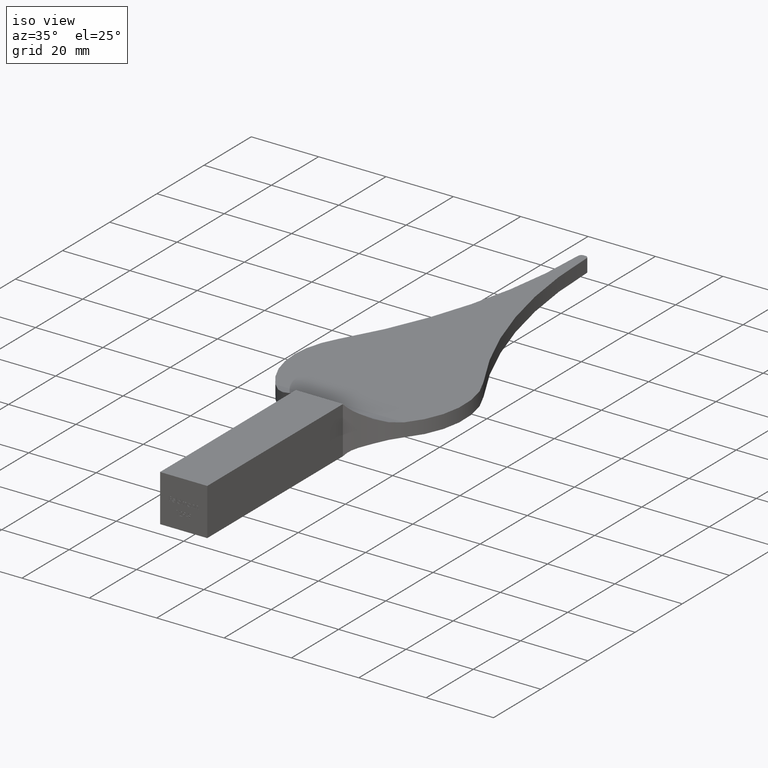
[diagram: clean part render]
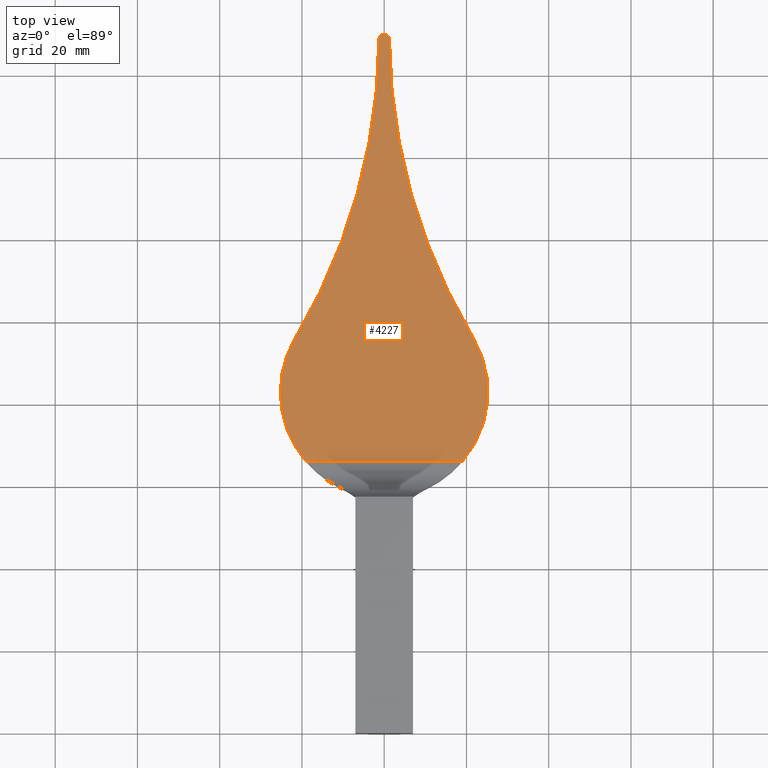
[diagram: tour spotlight — one face highlighted and labeled with its STEP entity id]
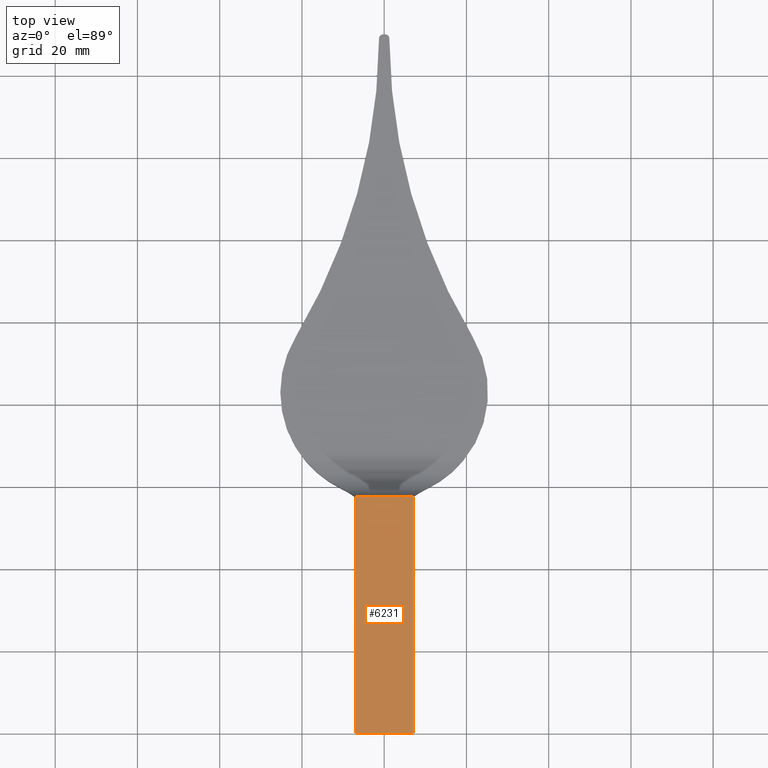
[diagram: tour spotlight — one face highlighted and labeled with its STEP entity id]
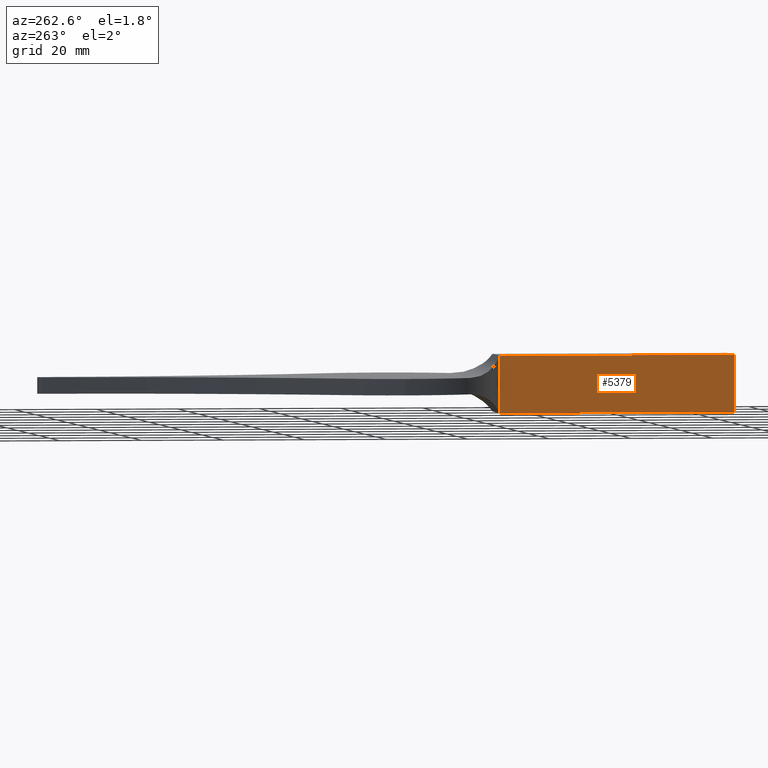
[diagram: tour spotlight — one face highlighted and labeled with its STEP entity id]
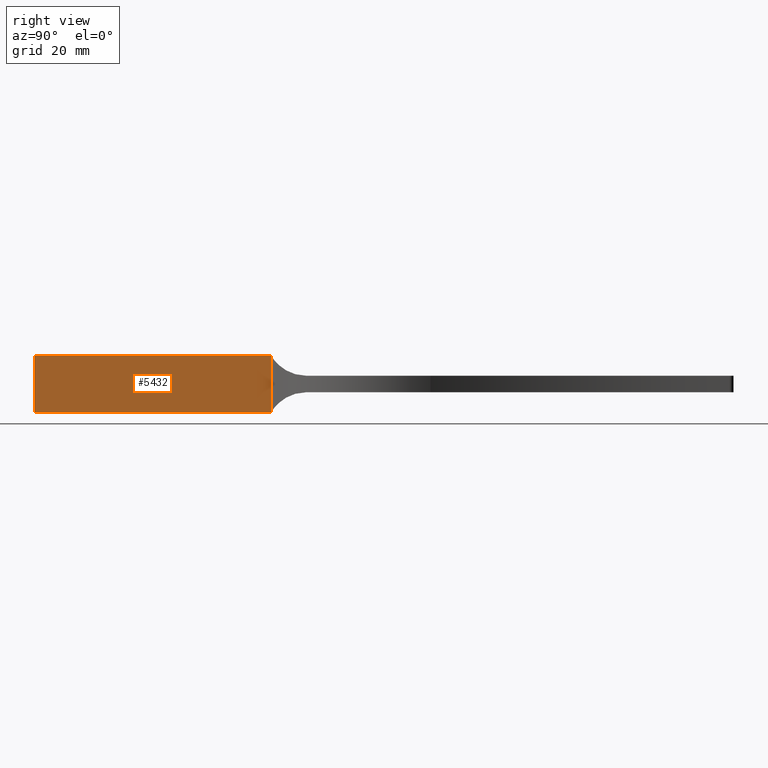
[diagram: tour spotlight — one face highlighted and labeled with its STEP entity id]
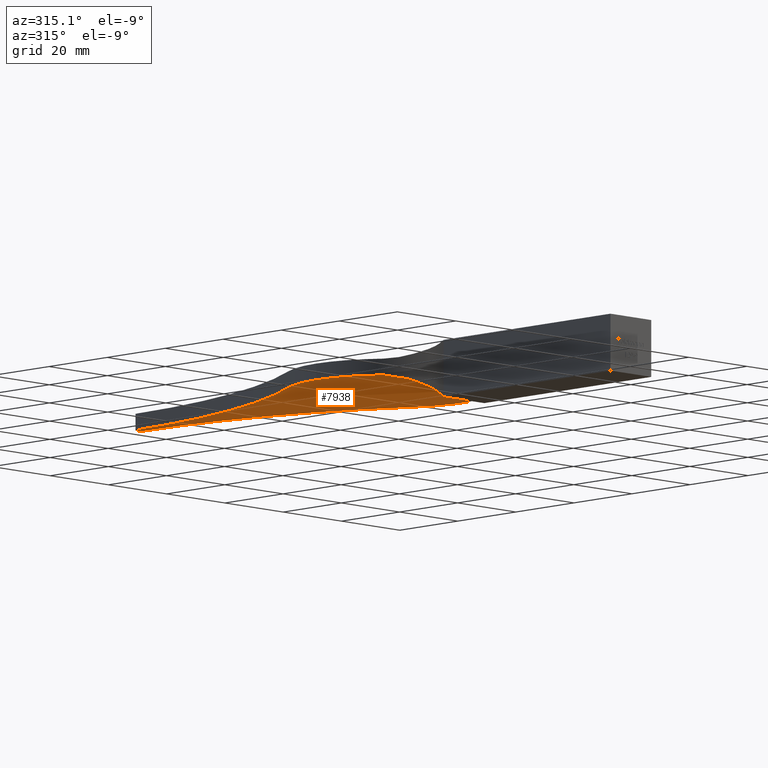
[diagram: tour spotlight — one face highlighted and labeled with its STEP entity id]
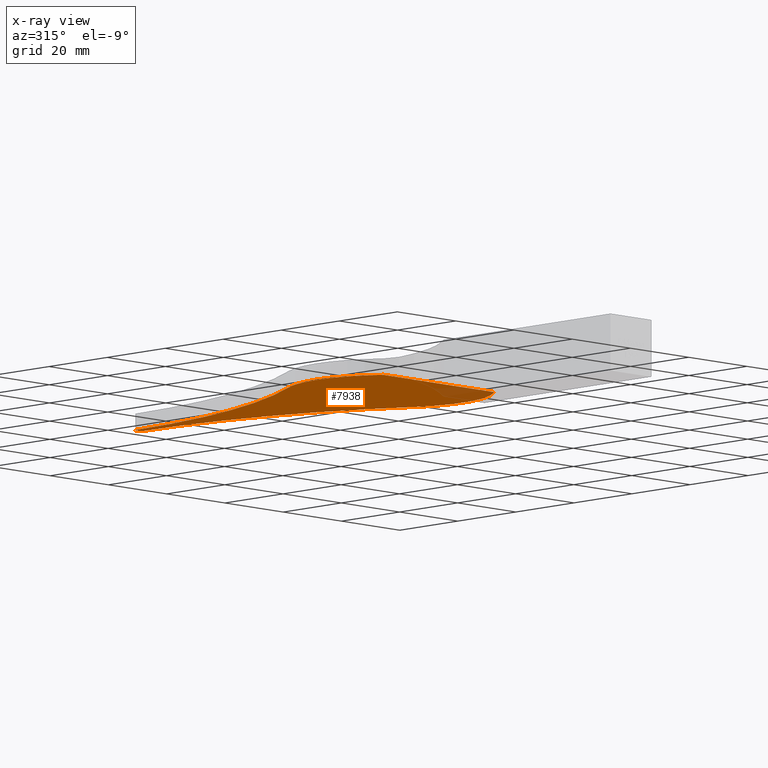
[diagram: x-ray of the same camera — body ghosted, this tour face saturated]
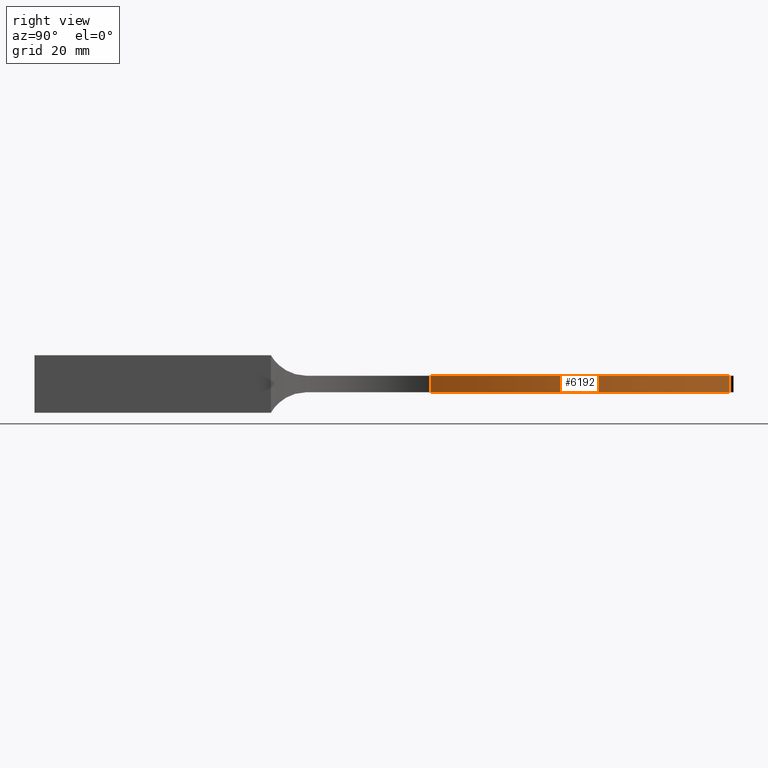
[diagram: tour spotlight — one face highlighted and labeled with its STEP entity id]
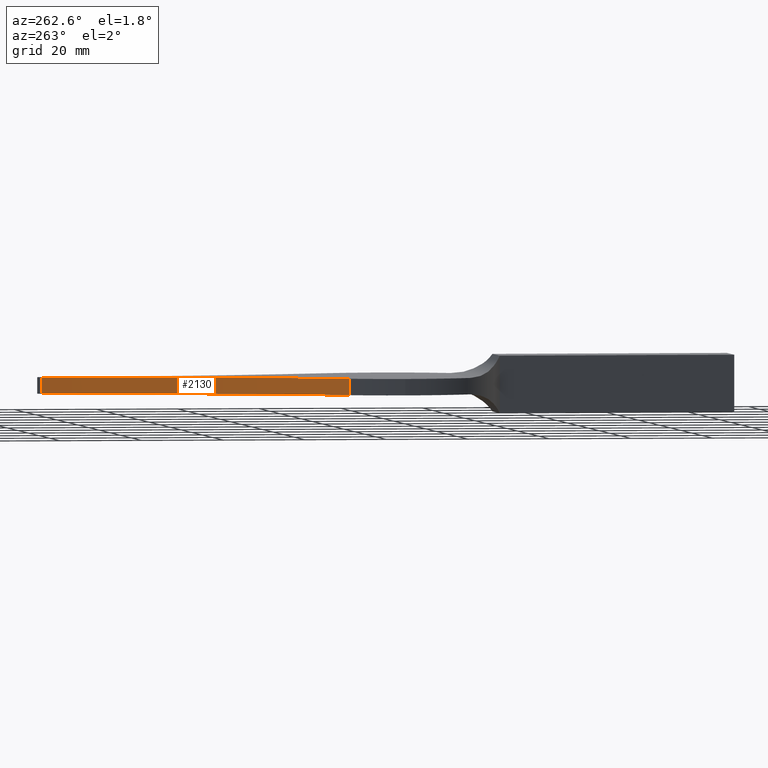
[diagram: tour spotlight — one face highlighted and labeled with its STEP entity id]
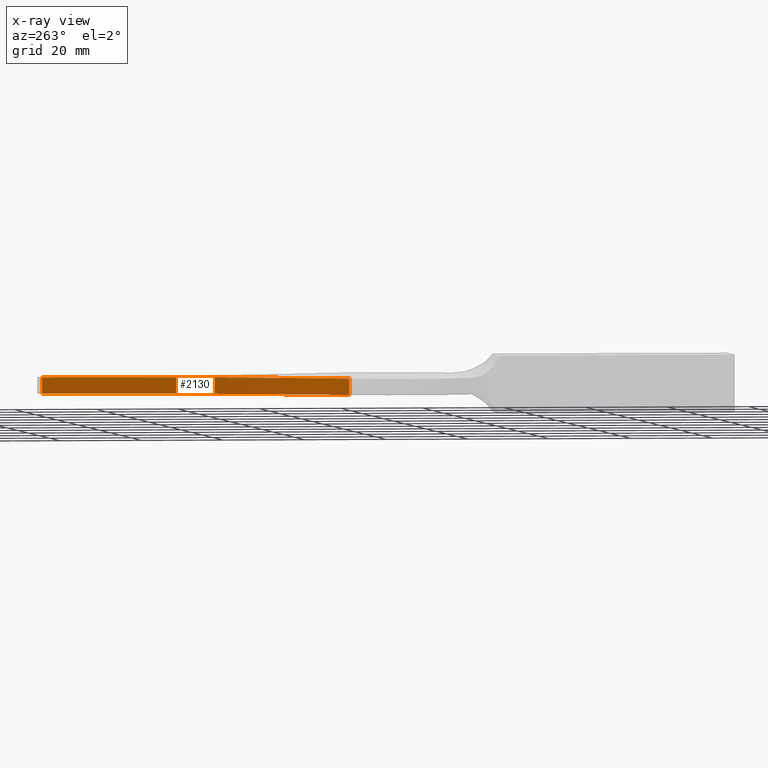
[diagram: x-ray of the same camera — body ghosted, this tour face saturated]
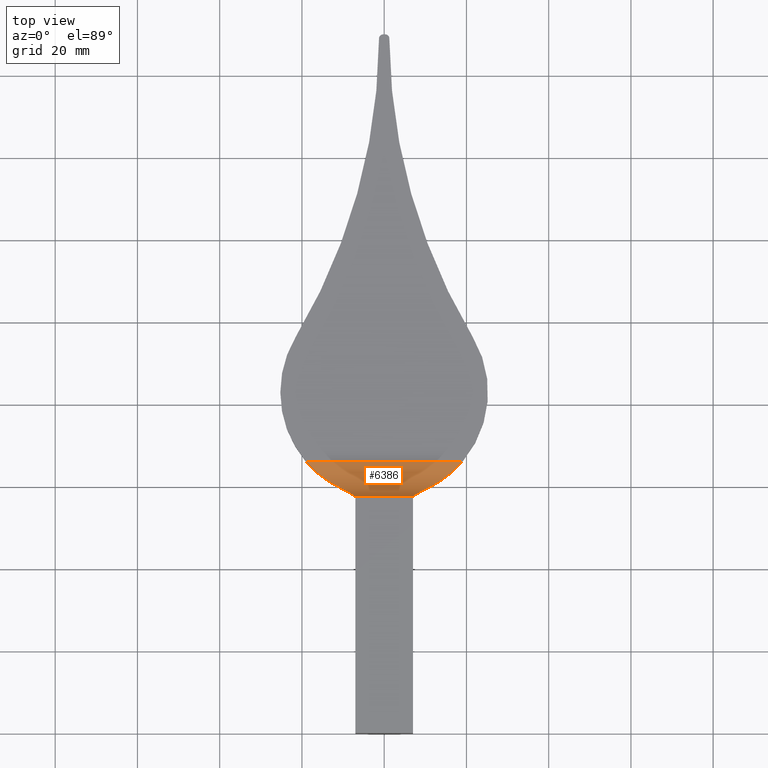
[diagram: tour spotlight — one face highlighted and labeled with its STEP entity id]
A machine part: a face-by-face anatomy tour. The part has 185 B-rep faces; the first image is the clean iso view, then the 8 largest visible faces are spotlighted one at a time (largest first), each with its STEP entity span.

Face 1 — top view, entity #4227. In plain terms, the highlighted planar face has unit normal (-0, 0, 1).
Definition (entity closure, byte-faithful):
#116 = DIRECTION ( 'NONE',  ( -0.0000000000000000000, 0.0000000000000000000, 1.000000000000000000 ) ) ;
#124 = CARTESIAN_POINT ( 'NONE',  ( 0.0000000000000000000, 0.0000000000000000000, 2.000000000000000000 ) ) ;
#257 = VERTEX_POINT ( 'NONE', #9165 ) ;
#474 = CARTESIAN_POINT ( 'NONE',  ( 144.9767233398251800, 169.9999999999999700, 2.000000000000000000 ) ) ;
#727 = LINE ( 'NONE', #2344, #4347 ) ;
#835 = DIRECTION ( 'NONE',  ( 0.0000000000000000000, -0.0000000000000000000, -1.000000000000000000 ) ) ;
#859 = ORIENTED_EDGE ( 'NONE', *, *, #2263, .T. ) ;
#1215 = DIRECTION ( 'NONE',  ( 1.000000000000000000, 0.0000000000000000000, 0.0000000000000000000 ) ) ;
#1228 = CARTESIAN_POINT ( 'NONE',  ( -1.253430956828421900, 169.0069095739675600, 2.000000000000000000 ) ) ;
#1453 = VECTOR ( 'NONE', #5303, 1000.000000000000000 ) ;
#1644 = AXIS2_PLACEMENT_3D ( 'NONE', #4478, #116, #5199 ) ;
#1826 = AXIS2_PLACEMENT_3D ( 'NONE', #3505, #8579, #4237 ) ;
#1895 = CARTESIAN_POINT ( 'NONE',  ( 1.253430956828421900, 169.0069095739675600, 2.000000000000000000 ) ) ;
#2149 = CARTESIAN_POINT ( 'NONE',  ( 0.7499999999999972200, 82.98918044109893800, 2.000000000000000000 ) ) ;
#2198 = AXIS2_PLACEMENT_3D ( 'NONE', #474, #5548, #1215 ) ;
#2263 = EDGE_CURVE ( 'NONE', #3214, #6845, #9146, .T. ) ;
#2267 = VERTEX_POINT ( 'NONE', #6022 ) ;
#2271 = EDGE_CURVE ( 'NONE', #5423, #2425, #3361, .T. ) ;
#2314 = VERTEX_POINT ( 'NONE', #2461 ) ;
#2344 = CARTESIAN_POINT ( 'NONE',  ( 0.0000000000000000000, 169.9999999999999700, 2.000000000000000000 ) ) ;
#2425 = VERTEX_POINT ( 'NONE', #7638 ) ;
#2444 = CARTESIAN_POINT ( 'NONE',  ( -0.2534548282195625600, 169.9999999999999700, 2.000000000000000000 ) ) ;
#2461 = CARTESIAN_POINT ( 'NONE',  ( 0.2534548282195625600, 169.9999999999999700, 2.000000000000000000 ) ) ;
#2678 = ORIENTED_EDGE ( 'NONE', *, *, #5902, .T. ) ;
#2717 = CARTESIAN_POINT ( 'NONE',  ( 0.2534548282195625600, 168.9999999999999700, 2.000000000000000000 ) ) ;
#2800 = VERTEX_POINT ( 'NONE', #2444 ) ;
#2867 = DIRECTION ( 'NONE',  ( 1.000000000000000000, 0.0000000000000000000, 0.0000000000000000000 ) ) ;
#3032 = AXIS2_PLACEMENT_3D ( 'NONE', #2149, #7228, #2867 ) ;
#3044 = EDGE_CURVE ( 'NONE', #3214, #257, #4246, .T. ) ;
#3068 = DIRECTION ( 'NONE',  ( 1.000000000000000000, 0.0000000000000000000, 0.0000000000000000000 ) ) ;
#3077 = DIRECTION ( 'NONE',  ( 1.000000000000000000, 0.0000000000000000000, 0.0000000000000000000 ) ) ;
#3126 = CARTESIAN_POINT ( 'NONE',  ( 4.378516397663310600, 66.16025403784439600, 2.000000000000000000 ) ) ;
#3214 = VERTEX_POINT ( 'NONE', #6564 ) ;
#3361 = CIRCLE ( 'NONE', #3606, 143.7267233398251800 ) ;
#3431 = DIRECTION ( 'NONE',  ( 1.000000000000000000, 0.0000000000000000000, 0.0000000000000000000 ) ) ;
#3472 = ORIENTED_EDGE ( 'NONE', *, *, #5109, .F. ) ;
#3505 = CARTESIAN_POINT ( 'NONE',  ( -0.2534548282195625600, 168.9999999999999700, 2.000000000000000000 ) ) ;
#3568 = AXIS2_PLACEMENT_3D ( 'NONE', #2717, #7795, #3431 ) ;
#3606 = AXIS2_PLACEMENT_3D ( 'NONE', #8240, #3874, #8944 ) ;
#3793 = CIRCLE ( 'NONE', #1826, 1.000000000000000000 ) ;
#3798 = ORIENTED_EDGE ( 'NONE', *, *, #3044, .F. ) ;
#3822 = FACE_OUTER_BOUND ( 'NONE', #8601, .T. ) ;
#3874 = DIRECTION ( 'NONE',  ( 0.0000000000000000000, -0.0000000000000000000, -1.000000000000000000 ) ) ;
#3893 = ORIENTED_EDGE ( 'NONE', *, *, #2271, .T. ) ;
#4212 = EDGE_CURVE ( 'NONE', #8886, #2267, #5972, .T. ) ;
#4227 = ADVANCED_FACE ( 'NONE', ( #3822 ), #6684, .T. ) ;
#4237 = DIRECTION ( 'NONE',  ( 1.000000000000000000, 0.0000000000000000000, 0.0000000000000000000 ) ) ;
#4246 = CIRCLE ( 'NONE', #3032, 26.00000000000004300 ) ;
#4347 = VECTOR ( 'NONE', #3068, 1000.000000000000000 ) ;
#4361 = CIRCLE ( 'NONE', #3568, 1.000000000000000000 ) ;
#4478 = CARTESIAN_POINT ( 'NONE',  ( -0.7499999999999972200, 82.98918044109893800, 2.000000000000000000 ) ) ;
#4607 = AXIS2_PLACEMENT_3D ( 'NONE', #124, #7437, #3077 ) ;
#4941 = EDGE_CURVE ( 'NONE', #257, #2425, #9338, .T. ) ;
#5109 = EDGE_CURVE ( 'NONE', #2800, #2314, #727, .T. ) ;
#5165 = CARTESIAN_POINT ( 'NONE',  ( 0.7499999999999972200, 82.98918044109893800, 2.000000000000000000 ) ) ;
#5199 = DIRECTION ( 'NONE',  ( 1.000000000000000000, 0.0000000000000000000, 0.0000000000000000000 ) ) ;
#5221 = ORIENTED_EDGE ( 'NONE', *, *, #5463, .T. ) ;
#5265 = ORIENTED_EDGE ( 'NONE', *, *, #4941, .F. ) ;
#5303 = DIRECTION ( 'NONE',  ( 1.000000000000000000, 0.0000000000000000000, 0.0000000000000000000 ) ) ;
#5423 = VERTEX_POINT ( 'NONE', #1228 ) ;
#5463 = EDGE_CURVE ( 'NONE', #2800, #5423, #3793, .T. ) ;
#5548 = DIRECTION ( 'NONE',  ( -0.0000000000000000000, 0.0000000000000000000, 1.000000000000000000 ) ) ;
#5846 = CIRCLE ( 'NONE', #1644, 26.00000000000004300 ) ;
#5883 = DIRECTION ( 'NONE',  ( 1.000000000000000000, 0.0000000000000000000, 0.0000000000000000000 ) ) ;
#5902 = EDGE_CURVE ( 'NONE', #6845, #2267, #5846, .T. ) ;
#5972 = CIRCLE ( 'NONE', #2198, 143.7267233398252100 ) ;
#6022 = CARTESIAN_POINT ( 'NONE',  ( 21.57350175787799500, 96.31814398917801200, 2.000000000000000000 ) ) ;
#6564 = CARTESIAN_POINT ( 'NONE',  ( -19.06886061593461800, 66.16025403784439600, 2.000000000000000000 ) ) ;
#6673 = CARTESIAN_POINT ( 'NONE',  ( 19.06886061593461800, 66.16025403784439600, 2.000000000000000000 ) ) ;
#6684 = PLANE ( 'NONE',  #4607 ) ;
#6845 = VERTEX_POINT ( 'NONE', #6673 ) ;
#7228 = DIRECTION ( 'NONE',  ( 0.0000000000000000000, -0.0000000000000000000, -1.000000000000000000 ) ) ;
#7358 = AXIS2_PLACEMENT_3D ( 'NONE', #5165, #835, #5883 ) ;
#7412 = EDGE_CURVE ( 'NONE', #8886, #2314, #4361, .T. ) ;
#7437 = DIRECTION ( 'NONE',  ( -0.0000000000000000000, 0.0000000000000000000, 1.000000000000000000 ) ) ;
#7638 = CARTESIAN_POINT ( 'NONE',  ( -21.57350175787799500, 96.31814398917801200, 2.000000000000000000 ) ) ;
#7795 = DIRECTION ( 'NONE',  ( -0.0000000000000000000, 0.0000000000000000000, 1.000000000000000000 ) ) ;
#8200 = ORIENTED_EDGE ( 'NONE', *, *, #4212, .F. ) ;
#8240 = CARTESIAN_POINT ( 'NONE',  ( -144.9767233398251800, 169.9999999999999700, 2.000000000000000000 ) ) ;
#8579 = DIRECTION ( 'NONE',  ( -0.0000000000000000000, 0.0000000000000000000, 1.000000000000000000 ) ) ;
#8601 = EDGE_LOOP ( 'NONE', ( #8200, #8748, #3472, #5221, #3893, #5265, #3798, #859, #2678 ) ) ;
#8748 = ORIENTED_EDGE ( 'NONE', *, *, #7412, .T. ) ;
#8886 = VERTEX_POINT ( 'NONE', #1895 ) ;
#8944 = DIRECTION ( 'NONE',  ( 1.000000000000000000, 0.0000000000000000000, 0.0000000000000000000 ) ) ;
#9146 = LINE ( 'NONE', #3126, #1453 ) ;
#9165 = CARTESIAN_POINT ( 'NONE',  ( -25.25000000000004600, 82.98918044109893800, 2.000000000000000000 ) ) ;
#9338 = CIRCLE ( 'NONE', #7358, 26.00000000000004300 ) ;

Face 2 — top view, entity #6231. In plain terms, the highlighted planar face has unit normal (-0, 0, -1).
Definition (entity closure, byte-faithful):
#187 = PLANE ( 'NONE',  #5539 ) ;
#225 = VECTOR ( 'NONE', #2599, 1000.000000000000000 ) ;
#725 = LINE ( 'NONE', #5473, #225 ) ;
#1323 = DIRECTION ( 'NONE',  ( -0.0000000000000000000, -1.000000000000000000, -0.0000000000000000000 ) ) ;
#1513 = VERTEX_POINT ( 'NONE', #4116 ) ;
#1588 = CARTESIAN_POINT ( 'NONE',  ( 7.000000000000001800, 57.50000000000000000, 7.000000000000000000 ) ) ;
#1664 = DIRECTION ( 'NONE',  ( -6.195440985631452900E-017, 0.0000000000000000000, -1.000000000000000000 ) ) ;
#1735 = CARTESIAN_POINT ( 'NONE',  ( -6.999999999999999100, 0.0000000000000000000, 7.000000000000000900 ) ) ;
#1871 = VERTEX_POINT ( 'NONE', #2058 ) ;
#1929 = CARTESIAN_POINT ( 'NONE',  ( 7.000000000000002700, 57.50000000000000000, 7.000000000000000000 ) ) ;
#2058 = CARTESIAN_POINT ( 'NONE',  ( -6.999999999999999100, 57.50000000000000000, 7.000000000000000900 ) ) ;
#2128 = ORIENTED_EDGE ( 'NONE', *, *, #5093, .F. ) ;
#2134 = VERTEX_POINT ( 'NONE', #1929 ) ;
#2155 = EDGE_CURVE ( 'NONE', #1871, #2134, #5760, .T. ) ;
#2316 = VERTEX_POINT ( 'NONE', #1735 ) ;
#2599 = DIRECTION ( 'NONE',  ( 1.000000000000000000, 0.0000000000000000000, -6.195440985631452900E-017 ) ) ;
#2779 = CARTESIAN_POINT ( 'NONE',  ( -6.999999999999999100, 57.50000000000000000, 7.000000000000000900 ) ) ;
#3483 = EDGE_CURVE ( 'NONE', #2316, #1513, #725, .T. ) ;
#4116 = CARTESIAN_POINT ( 'NONE',  ( 7.000000000000001800, 0.0000000000000000000, 7.000000000000000000 ) ) ;
#4473 = FACE_OUTER_BOUND ( 'NONE', #8547, .T. ) ;
#4569 = ORIENTED_EDGE ( 'NONE', *, *, #3483, .T. ) ;
#5093 = EDGE_CURVE ( 'NONE', #2134, #1513, #8435, .T. ) ;
#5473 = CARTESIAN_POINT ( 'NONE',  ( -6.999999999999999100, 0.0000000000000000000, 7.000000000000000900 ) ) ;
#5539 = AXIS2_PLACEMENT_3D ( 'NONE', #6627, #1664, #6715 ) ;
#5566 = DIRECTION ( 'NONE',  ( 1.000000000000000000, 0.0000000000000000000, -6.195440985631452900E-017 ) ) ;
#5603 = LINE ( 'NONE', #2779, #7522 ) ;
#5760 = LINE ( 'NONE', #6327, #7690 ) ;
#5954 = DIRECTION ( 'NONE',  ( -0.0000000000000000000, -1.000000000000000000, -0.0000000000000000000 ) ) ;
#6231 = ADVANCED_FACE ( 'NONE', ( #4473 ), #187, .F. ) ;
#6327 = CARTESIAN_POINT ( 'NONE',  ( -6.999999999999999100, 57.50000000000000000, 7.000000000000000900 ) ) ;
#6627 = CARTESIAN_POINT ( 'NONE',  ( -6.999999999999999100, 57.50000000000000000, 7.000000000000000900 ) ) ;
#6715 = DIRECTION ( 'NONE',  ( -1.000000000000000000, 0.0000000000000000000, 6.195440985631452900E-017 ) ) ;
#7116 = ORIENTED_EDGE ( 'NONE', *, *, #7538, .T. ) ;
#7522 = VECTOR ( 'NONE', #1323, 1000.000000000000000 ) ;
#7538 = EDGE_CURVE ( 'NONE', #1871, #2316, #5603, .T. ) ;
#7690 = VECTOR ( 'NONE', #5566, 1000.000000000000000 ) ;
#8131 = ORIENTED_EDGE ( 'NONE', *, *, #2155, .F. ) ;
#8189 = VECTOR ( 'NONE', #5954, 1000.000000000000000 ) ;
#8435 = LINE ( 'NONE', #1588, #8189 ) ;
#8547 = EDGE_LOOP ( 'NONE', ( #4569, #2128, #8131, #7116 ) ) ;

Face 3 — auxiliary view, entity #5379. In plain terms, the highlighted planar face has unit normal (1, 0, -0).
Definition (entity closure, byte-faithful):
#22 = VECTOR ( 'NONE', #7515, 1000.000000000000000 ) ;
#422 = CARTESIAN_POINT ( 'NONE',  ( -7.000000000000000900, 57.50000000000000000, -7.000000000000000000 ) ) ;
#484 = DIRECTION ( 'NONE',  ( 1.000000000000000000, 0.0000000000000000000, -1.239088197126290600E-016 ) ) ;
#729 = LINE ( 'NONE', #9039, #8195 ) ;
#897 = VECTOR ( 'NONE', #5480, 1000.000000000000000 ) ;
#972 = EDGE_LOOP ( 'NONE', ( #5043, #7516, #7797, #7632 ) ) ;
#1323 = DIRECTION ( 'NONE',  ( -0.0000000000000000000, -1.000000000000000000, -0.0000000000000000000 ) ) ;
#1365 = AXIS2_PLACEMENT_3D ( 'NONE', #4687, #484, #5558 ) ;
#1503 = FACE_OUTER_BOUND ( 'NONE', #972, .T. ) ;
#1735 = CARTESIAN_POINT ( 'NONE',  ( -6.999999999999999100, 0.0000000000000000000, 7.000000000000000900 ) ) ;
#1754 = CARTESIAN_POINT ( 'NONE',  ( -7.000000000000000900, 0.0000000000000000000, -7.000000000000000000 ) ) ;
#1871 = VERTEX_POINT ( 'NONE', #2058 ) ;
#2058 = CARTESIAN_POINT ( 'NONE',  ( -6.999999999999999100, 57.50000000000000000, 7.000000000000000900 ) ) ;
#2316 = VERTEX_POINT ( 'NONE', #1735 ) ;
#2779 = CARTESIAN_POINT ( 'NONE',  ( -6.999999999999999100, 57.50000000000000000, 7.000000000000000900 ) ) ;
#3101 = CARTESIAN_POINT ( 'NONE',  ( -7.000000000000000900, 0.0000000000000000000, -7.000000000000000000 ) ) ;
#3331 = VERTEX_POINT ( 'NONE', #6028 ) ;
#4687 = CARTESIAN_POINT ( 'NONE',  ( -7.000000000000000900, 57.50000000000000000, -7.000000000000000000 ) ) ;
#5043 = ORIENTED_EDGE ( 'NONE', *, *, #5214, .T. ) ;
#5195 = LINE ( 'NONE', #422, #897 ) ;
#5214 = EDGE_CURVE ( 'NONE', #6039, #2316, #6252, .T. ) ;
#5379 = ADVANCED_FACE ( 'NONE', ( #1503 ), #9167, .F. ) ;
#5480 = DIRECTION ( 'NONE',  ( 1.239088197126290600E-016, 0.0000000000000000000, 1.000000000000000000 ) ) ;
#5558 = DIRECTION ( 'NONE',  ( -1.239088197126290600E-016, 0.0000000000000000000, -1.000000000000000000 ) ) ;
#5603 = LINE ( 'NONE', #2779, #7522 ) ;
#6028 = CARTESIAN_POINT ( 'NONE',  ( -7.000000000000000900, 57.50000000000000000, -7.000000000000000000 ) ) ;
#6039 = VERTEX_POINT ( 'NONE', #1754 ) ;
#6252 = LINE ( 'NONE', #3101, #22 ) ;
#7297 = DIRECTION ( 'NONE',  ( -0.0000000000000000000, -1.000000000000000000, -0.0000000000000000000 ) ) ;
#7515 = DIRECTION ( 'NONE',  ( 1.239088197126290600E-016, 0.0000000000000000000, 1.000000000000000000 ) ) ;
#7516 = ORIENTED_EDGE ( 'NONE', *, *, #7538, .F. ) ;
#7522 = VECTOR ( 'NONE', #1323, 1000.000000000000000 ) ;
#7538 = EDGE_CURVE ( 'NONE', #1871, #2316, #5603, .T. ) ;
#7632 = ORIENTED_EDGE ( 'NONE', *, *, #8310, .T. ) ;
#7797 = ORIENTED_EDGE ( 'NONE', *, *, #9309, .F. ) ;
#8195 = VECTOR ( 'NONE', #7297, 1000.000000000000000 ) ;
#8310 = EDGE_CURVE ( 'NONE', #3331, #6039, #729, .T. ) ;
#9039 = CARTESIAN_POINT ( 'NONE',  ( -7.000000000000000900, 57.50000000000000000, -7.000000000000000000 ) ) ;
#9167 = PLANE ( 'NONE',  #1365 ) ;
#9309 = EDGE_CURVE ( 'NONE', #3331, #1871, #5195, .T. ) ;

Face 4 — right view, entity #5432. In plain terms, the highlighted planar face has unit normal (-1, 0, 0).
Definition (entity closure, byte-faithful):
#63 = CARTESIAN_POINT ( 'NONE',  ( 7.000000000000000000, 57.50000000000000000, -7.000000000000000000 ) ) ;
#167 = ORIENTED_EDGE ( 'NONE', *, *, #3232, .F. ) ;
#1241 = EDGE_CURVE ( 'NONE', #1513, #3781, #5906, .T. ) ;
#1259 = CARTESIAN_POINT ( 'NONE',  ( 7.000000000000000000, 57.50000000000000000, -7.000000000000000000 ) ) ;
#1287 = CARTESIAN_POINT ( 'NONE',  ( 7.000000000000000000, 57.50000000000000000, -7.000000000000000000 ) ) ;
#1513 = VERTEX_POINT ( 'NONE', #4116 ) ;
#1588 = CARTESIAN_POINT ( 'NONE',  ( 7.000000000000001800, 57.50000000000000000, 7.000000000000000000 ) ) ;
#1929 = CARTESIAN_POINT ( 'NONE',  ( 7.000000000000002700, 57.50000000000000000, 7.000000000000000000 ) ) ;
#1982 = DIRECTION ( 'NONE',  ( 1.239088197126290800E-016, 0.0000000000000000000, 1.000000000000000000 ) ) ;
#2087 = VECTOR ( 'NONE', #2265, 1000.000000000000000 ) ;
#2134 = VERTEX_POINT ( 'NONE', #1929 ) ;
#2203 = VECTOR ( 'NONE', #4893, 1000.000000000000000 ) ;
#2265 = DIRECTION ( 'NONE',  ( -1.239088197126290800E-016, -0.0000000000000000000, -1.000000000000000000 ) ) ;
#2299 = AXIS2_PLACEMENT_3D ( 'NONE', #1259, #6316, #1982 ) ;
#2324 = FACE_OUTER_BOUND ( 'NONE', #7576, .T. ) ;
#2378 = CARTESIAN_POINT ( 'NONE',  ( 7.000000000000000000, 0.0000000000000000000, -7.000000000000000000 ) ) ;
#2401 = LINE ( 'NONE', #1287, #2203 ) ;
#3232 = EDGE_CURVE ( 'NONE', #3747, #3781, #9094, .T. ) ;
#3747 = VERTEX_POINT ( 'NONE', #4538 ) ;
#3755 = VECTOR ( 'NONE', #5134, 1000.000000000000000 ) ;
#3781 = VERTEX_POINT ( 'NONE', #2378 ) ;
#4116 = CARTESIAN_POINT ( 'NONE',  ( 7.000000000000001800, 0.0000000000000000000, 7.000000000000000000 ) ) ;
#4133 = PLANE ( 'NONE',  #2299 ) ;
#4538 = CARTESIAN_POINT ( 'NONE',  ( 7.000000000000000000, 57.50000000000000000, -7.000000000000000000 ) ) ;
#4893 = DIRECTION ( 'NONE',  ( -1.239088197126290800E-016, -0.0000000000000000000, -1.000000000000000000 ) ) ;
#5093 = EDGE_CURVE ( 'NONE', #2134, #1513, #8435, .T. ) ;
#5134 = DIRECTION ( 'NONE',  ( -0.0000000000000000000, -1.000000000000000000, -0.0000000000000000000 ) ) ;
#5432 = ADVANCED_FACE ( 'NONE', ( #2324 ), #4133, .F. ) ;
#5504 = ORIENTED_EDGE ( 'NONE', *, *, #1241, .T. ) ;
#5906 = LINE ( 'NONE', #6604, #2087 ) ;
#5954 = DIRECTION ( 'NONE',  ( -0.0000000000000000000, -1.000000000000000000, -0.0000000000000000000 ) ) ;
#6316 = DIRECTION ( 'NONE',  ( -1.000000000000000000, 0.0000000000000000000, 1.239088197126290800E-016 ) ) ;
#6604 = CARTESIAN_POINT ( 'NONE',  ( 7.000000000000000000, 0.0000000000000000000, -7.000000000000000000 ) ) ;
#6729 = ORIENTED_EDGE ( 'NONE', *, *, #5093, .T. ) ;
#6859 = ORIENTED_EDGE ( 'NONE', *, *, #7433, .F. ) ;
#7433 = EDGE_CURVE ( 'NONE', #2134, #3747, #2401, .T. ) ;
#7576 = EDGE_LOOP ( 'NONE', ( #5504, #167, #6859, #6729 ) ) ;
#8189 = VECTOR ( 'NONE', #5954, 1000.000000000000000 ) ;
#8435 = LINE ( 'NONE', #1588, #8189 ) ;
#9094 = LINE ( 'NONE', #63, #3755 ) ;

Face 5 — auxiliary view, entity #7938. An x-ray twin of the same camera follows (body ghosted, this face saturated) — the face is partly hidden behind the body. In plain terms, the highlighted planar face has unit normal (-0, 0, 1).
Definition (entity closure, byte-faithful):
#34 = CARTESIAN_POINT ( 'NONE',  ( 0.2534548282195625600, 168.9999999999999700, -2.000000000000000000 ) ) ;
#43 = CIRCLE ( 'NONE', #3881, 1.000000000000000000 ) ;
#173 = EDGE_CURVE ( 'NONE', #3894, #4476, #4455, .T. ) ;
#198 = CIRCLE ( 'NONE', #7579, 143.7267233398251800 ) ;
#290 = CARTESIAN_POINT ( 'NONE',  ( -25.25000000000004600, 82.98918044109893800, -2.000000000000000000 ) ) ;
#350 = VERTEX_POINT ( 'NONE', #9383 ) ;
#652 = AXIS2_PLACEMENT_3D ( 'NONE', #6780, #2448, #7527 ) ;
#751 = CIRCLE ( 'NONE', #1962, 1.000000000000000000 ) ;
#786 = DIRECTION ( 'NONE',  ( 1.000000000000000000, 0.0000000000000000000, 0.0000000000000000000 ) ) ;
#806 = DIRECTION ( 'NONE',  ( 0.0000000000000000000, -0.0000000000000000000, -1.000000000000000000 ) ) ;
#837 = DIRECTION ( 'NONE',  ( 0.0000000000000000000, -0.0000000000000000000, -1.000000000000000000 ) ) ;
#1073 = CARTESIAN_POINT ( 'NONE',  ( 1.253430956828421900, 169.0069095739675600, -2.000000000000000000 ) ) ;
#1349 = DIRECTION ( 'NONE',  ( -1.000000000000000000, -0.0000000000000000000, -0.0000000000000000000 ) ) ;
#1460 = LINE ( 'NONE', #1965, #9152 ) ;
#1529 = CARTESIAN_POINT ( 'NONE',  ( 21.57350175787799500, 96.31814398917801200, -2.000000000000000000 ) ) ;
#1573 = ORIENTED_EDGE ( 'NONE', *, *, #8760, .T. ) ;
#1579 = EDGE_CURVE ( 'NONE', #7909, #5261, #1460, .T. ) ;
#1616 = FACE_OUTER_BOUND ( 'NONE', #5827, .T. ) ;
#1805 = CARTESIAN_POINT ( 'NONE',  ( -0.2534548282195625600, 169.9999999999999700, -2.000000000000000000 ) ) ;
#1933 = CIRCLE ( 'NONE', #652, 26.00000000000004300 ) ;
#1962 = AXIS2_PLACEMENT_3D ( 'NONE', #34, #5111, #786 ) ;
#1965 = CARTESIAN_POINT ( 'NONE',  ( -0.0000000000000000000, 66.16025403784439600, -2.000000000000000000 ) ) ;
#2209 = CIRCLE ( 'NONE', #2937, 26.00000000000004300 ) ;
#2251 = CARTESIAN_POINT ( 'NONE',  ( 144.9767233398251800, 169.9999999999999700, -2.000000000000000000 ) ) ;
#2435 = VERTEX_POINT ( 'NONE', #1073 ) ;
#2448 = DIRECTION ( 'NONE',  ( 0.0000000000000000000, -0.0000000000000000000, -1.000000000000000000 ) ) ;
#2514 = CARTESIAN_POINT ( 'NONE',  ( -1.253430956828421900, 169.0069095739675600, -2.000000000000000000 ) ) ;
#2527 = VECTOR ( 'NONE', #6235, 1000.000000000000000 ) ;
#2764 = DIRECTION ( 'NONE',  ( -0.0000000000000000000, 0.0000000000000000000, 1.000000000000000000 ) ) ;
#2937 = AXIS2_PLACEMENT_3D ( 'NONE', #5136, #806, #5865 ) ;
#2985 = DIRECTION ( 'NONE',  ( 1.000000000000000000, 0.0000000000000000000, 0.0000000000000000000 ) ) ;
#3413 = AXIS2_PLACEMENT_3D ( 'NONE', #2251, #7340, #2985 ) ;
#3414 = CARTESIAN_POINT ( 'NONE',  ( -0.7499999999999972200, 82.98918044109893800, -2.000000000000000000 ) ) ;
#3691 = CARTESIAN_POINT ( 'NONE',  ( -144.9767233398251800, 169.9999999999999700, -2.000000000000000000 ) ) ;
#3881 = AXIS2_PLACEMENT_3D ( 'NONE', #5169, #837, #5885 ) ;
#3894 = VERTEX_POINT ( 'NONE', #1805 ) ;
#3895 = CIRCLE ( 'NONE', #3413, 143.7267233398252100 ) ;
#3921 = VERTEX_POINT ( 'NONE', #2514 ) ;
#4154 = DIRECTION ( 'NONE',  ( 1.000000000000000000, 0.0000000000000000000, 0.0000000000000000000 ) ) ;
#4426 = DIRECTION ( 'NONE',  ( 1.000000000000000000, 0.0000000000000000000, 0.0000000000000000000 ) ) ;
#4455 = LINE ( 'NONE', #5523, #2527 ) ;
#4476 = VERTEX_POINT ( 'NONE', #5807 ) ;
#4879 = CARTESIAN_POINT ( 'NONE',  ( 19.06886061593461800, 66.16025403784439600, -2.000000000000000000 ) ) ;
#5066 = CIRCLE ( 'NONE', #8149, 26.00000000000004300 ) ;
#5111 = DIRECTION ( 'NONE',  ( 0.0000000000000000000, -0.0000000000000000000, -1.000000000000000000 ) ) ;
#5136 = CARTESIAN_POINT ( 'NONE',  ( 0.7499999999999972200, 82.98918044109893800, -2.000000000000000000 ) ) ;
#5169 = CARTESIAN_POINT ( 'NONE',  ( -0.2534548282195625600, 168.9999999999999700, -2.000000000000000000 ) ) ;
#5261 = VERTEX_POINT ( 'NONE', #5388 ) ;
#5276 = ORIENTED_EDGE ( 'NONE', *, *, #5670, .F. ) ;
#5388 = CARTESIAN_POINT ( 'NONE',  ( -19.06886061593461800, 66.16025403784439600, -2.000000000000000000 ) ) ;
#5523 = CARTESIAN_POINT ( 'NONE',  ( -0.0000000000000000000, 169.9999999999999700, -2.000000000000000000 ) ) ;
#5670 = EDGE_CURVE ( 'NONE', #7909, #6728, #5066, .T. ) ;
#5807 = CARTESIAN_POINT ( 'NONE',  ( 0.2534548282195625600, 169.9999999999999700, -2.000000000000000000 ) ) ;
#5827 = EDGE_LOOP ( 'NONE', ( #8974, #9235, #8582, #5276, #6501, #1573, #7549, #7391, #6034 ) ) ;
#5865 = DIRECTION ( 'NONE',  ( 1.000000000000000000, 0.0000000000000000000, 0.0000000000000000000 ) ) ;
#5885 = DIRECTION ( 'NONE',  ( 1.000000000000000000, 0.0000000000000000000, 0.0000000000000000000 ) ) ;
#6034 = ORIENTED_EDGE ( 'NONE', *, *, #6731, .T. ) ;
#6235 = DIRECTION ( 'NONE',  ( 1.000000000000000000, 0.0000000000000000000, 0.0000000000000000000 ) ) ;
#6501 = ORIENTED_EDGE ( 'NONE', *, *, #1579, .T. ) ;
#6624 = EDGE_CURVE ( 'NONE', #4476, #2435, #751, .T. ) ;
#6671 = EDGE_CURVE ( 'NONE', #8794, #350, #2209, .T. ) ;
#6693 = EDGE_CURVE ( 'NONE', #2435, #6728, #3895, .T. ) ;
#6728 = VERTEX_POINT ( 'NONE', #1529 ) ;
#6731 = EDGE_CURVE ( 'NONE', #3921, #3894, #43, .T. ) ;
#6780 = CARTESIAN_POINT ( 'NONE',  ( 0.7499999999999972200, 82.98918044109893800, -2.000000000000000000 ) ) ;
#7073 = PLANE ( 'NONE',  #8736 ) ;
#7114 = CARTESIAN_POINT ( 'NONE',  ( 0.0000000000000000000, 0.0000000000000000000, -2.000000000000000000 ) ) ;
#7340 = DIRECTION ( 'NONE',  ( -0.0000000000000000000, 0.0000000000000000000, 1.000000000000000000 ) ) ;
#7391 = ORIENTED_EDGE ( 'NONE', *, *, #8600, .F. ) ;
#7527 = DIRECTION ( 'NONE',  ( 1.000000000000000000, 0.0000000000000000000, 0.0000000000000000000 ) ) ;
#7549 = ORIENTED_EDGE ( 'NONE', *, *, #6671, .T. ) ;
#7579 = AXIS2_PLACEMENT_3D ( 'NONE', #3691, #8769, #4426 ) ;
#7846 = DIRECTION ( 'NONE',  ( 1.000000000000000000, 0.0000000000000000000, 0.0000000000000000000 ) ) ;
#7909 = VERTEX_POINT ( 'NONE', #4879 ) ;
#7938 = ADVANCED_FACE ( 'NONE', ( #1616 ), #7073, .F. ) ;
#8149 = AXIS2_PLACEMENT_3D ( 'NONE', #3414, #8506, #4154 ) ;
#8506 = DIRECTION ( 'NONE',  ( -0.0000000000000000000, 0.0000000000000000000, 1.000000000000000000 ) ) ;
#8582 = ORIENTED_EDGE ( 'NONE', *, *, #6693, .T. ) ;
#8600 = EDGE_CURVE ( 'NONE', #3921, #350, #198, .T. ) ;
#8736 = AXIS2_PLACEMENT_3D ( 'NONE', #7114, #2764, #7846 ) ;
#8760 = EDGE_CURVE ( 'NONE', #5261, #8794, #1933, .T. ) ;
#8769 = DIRECTION ( 'NONE',  ( 0.0000000000000000000, -0.0000000000000000000, -1.000000000000000000 ) ) ;
#8794 = VERTEX_POINT ( 'NONE', #290 ) ;
#8974 = ORIENTED_EDGE ( 'NONE', *, *, #173, .T. ) ;
#9152 = VECTOR ( 'NONE', #1349, 1000.000000000000000 ) ;
#9235 = ORIENTED_EDGE ( 'NONE', *, *, #6624, .T. ) ;
#9383 = CARTESIAN_POINT ( 'NONE',  ( -21.57350175787799500, 96.31814398917801200, -2.000000000000000000 ) ) ;

Face 6 — right view, entity #6192. In plain terms, the highlighted cylindrical surface (partial cylindrical patch) has radius 143.727 mm, axis along (-0, -0, -1).
Definition (entity closure, byte-faithful):
#93 = CARTESIAN_POINT ( 'NONE',  ( 144.9767233398251800, 169.9999999999999700, 2.000000000000000000 ) ) ;
#474 = CARTESIAN_POINT ( 'NONE',  ( 144.9767233398251800, 169.9999999999999700, 2.000000000000000000 ) ) ;
#1073 = CARTESIAN_POINT ( 'NONE',  ( 1.253430956828421900, 169.0069095739675600, -2.000000000000000000 ) ) ;
#1215 = DIRECTION ( 'NONE',  ( 1.000000000000000000, 0.0000000000000000000, 0.0000000000000000000 ) ) ;
#1225 = ORIENTED_EDGE ( 'NONE', *, *, #8413, .T. ) ;
#1529 = CARTESIAN_POINT ( 'NONE',  ( 21.57350175787799500, 96.31814398917801200, -2.000000000000000000 ) ) ;
#1895 = CARTESIAN_POINT ( 'NONE',  ( 1.253430956828421900, 169.0069095739675600, 2.000000000000000000 ) ) ;
#2198 = AXIS2_PLACEMENT_3D ( 'NONE', #474, #5548, #1215 ) ;
#2251 = CARTESIAN_POINT ( 'NONE',  ( 144.9767233398251800, 169.9999999999999700, -2.000000000000000000 ) ) ;
#2267 = VERTEX_POINT ( 'NONE', #6022 ) ;
#2435 = VERTEX_POINT ( 'NONE', #1073 ) ;
#2798 = FACE_OUTER_BOUND ( 'NONE', #9300, .T. ) ;
#2985 = DIRECTION ( 'NONE',  ( 1.000000000000000000, 0.0000000000000000000, 0.0000000000000000000 ) ) ;
#3191 = ORIENTED_EDGE ( 'NONE', *, *, #6693, .F. ) ;
#3413 = AXIS2_PLACEMENT_3D ( 'NONE', #2251, #7340, #2985 ) ;
#3469 = CARTESIAN_POINT ( 'NONE',  ( 1.253430956828421900, 169.0069095739675600, 2.000000000000000000 ) ) ;
#3714 = DIRECTION ( 'NONE',  ( -1.000000000000000000, 0.0000000000000000000, 0.0000000000000000000 ) ) ;
#3879 = VECTOR ( 'NONE', #4206, 1000.000000000000000 ) ;
#3895 = CIRCLE ( 'NONE', #3413, 143.7267233398252100 ) ;
#4206 = DIRECTION ( 'NONE',  ( 0.0000000000000000000, 0.0000000000000000000, 1.000000000000000000 ) ) ;
#4212 = EDGE_CURVE ( 'NONE', #8886, #2267, #5972, .T. ) ;
#4424 = DIRECTION ( 'NONE',  ( -0.0000000000000000000, -0.0000000000000000000, -1.000000000000000000 ) ) ;
#4547 = AXIS2_PLACEMENT_3D ( 'NONE', #93, #4424, #3714 ) ;
#4762 = VECTOR ( 'NONE', #6928, 1000.000000000000000 ) ;
#5143 = ORIENTED_EDGE ( 'NONE', *, *, #7498, .T. ) ;
#5548 = DIRECTION ( 'NONE',  ( -0.0000000000000000000, 0.0000000000000000000, 1.000000000000000000 ) ) ;
#5972 = CIRCLE ( 'NONE', #2198, 143.7267233398252100 ) ;
#6022 = CARTESIAN_POINT ( 'NONE',  ( 21.57350175787799500, 96.31814398917801200, 2.000000000000000000 ) ) ;
#6192 = ADVANCED_FACE ( 'NONE', ( #2798 ), #6414, .F. ) ;
#6198 = CARTESIAN_POINT ( 'NONE',  ( 21.57350175787799500, 96.31814398917801200, 2.000000000000000000 ) ) ;
#6414 = CYLINDRICAL_SURFACE ( 'NONE', #4547, 143.7267233398251800 ) ;
#6616 = ORIENTED_EDGE ( 'NONE', *, *, #4212, .T. ) ;
#6669 = LINE ( 'NONE', #6198, #4762 ) ;
#6693 = EDGE_CURVE ( 'NONE', #2435, #6728, #3895, .T. ) ;
#6728 = VERTEX_POINT ( 'NONE', #1529 ) ;
#6928 = DIRECTION ( 'NONE',  ( -0.0000000000000000000, -0.0000000000000000000, -1.000000000000000000 ) ) ;
#7340 = DIRECTION ( 'NONE',  ( -0.0000000000000000000, 0.0000000000000000000, 1.000000000000000000 ) ) ;
#7498 = EDGE_CURVE ( 'NONE', #2435, #8886, #7997, .T. ) ;
#7997 = LINE ( 'NONE', #3469, #3879 ) ;
#8413 = EDGE_CURVE ( 'NONE', #2267, #6728, #6669, .T. ) ;
#8886 = VERTEX_POINT ( 'NONE', #1895 ) ;
#9300 = EDGE_LOOP ( 'NONE', ( #3191, #5143, #6616, #1225 ) ) ;

Face 7 — auxiliary view, entity #2130. An x-ray twin of the same camera follows (body ghosted, this face saturated) — the face is partly hidden behind the body. In plain terms, the highlighted cylindrical surface (partial cylindrical patch) has radius 143.727 mm, axis along (-0, -0, -1).
Definition (entity closure, byte-faithful):
#137 = LINE ( 'NONE', #7951, #5920 ) ;
#198 = CIRCLE ( 'NONE', #7579, 143.7267233398251800 ) ;
#350 = VERTEX_POINT ( 'NONE', #9383 ) ;
#429 = CARTESIAN_POINT ( 'NONE',  ( -1.253430956828421900, 169.0069095739675600, 2.000000000000000000 ) ) ;
#1228 = CARTESIAN_POINT ( 'NONE',  ( -1.253430956828421900, 169.0069095739675600, 2.000000000000000000 ) ) ;
#1901 = CYLINDRICAL_SURFACE ( 'NONE', #4088, 143.7267233398252100 ) ;
#2130 = ADVANCED_FACE ( 'NONE', ( #2336 ), #1901, .F. ) ;
#2219 = ORIENTED_EDGE ( 'NONE', *, *, #2271, .F. ) ;
#2271 = EDGE_CURVE ( 'NONE', #5423, #2425, #3361, .T. ) ;
#2336 = FACE_OUTER_BOUND ( 'NONE', #7662, .T. ) ;
#2425 = VERTEX_POINT ( 'NONE', #7638 ) ;
#2514 = CARTESIAN_POINT ( 'NONE',  ( -1.253430956828421900, 169.0069095739675600, -2.000000000000000000 ) ) ;
#2650 = CARTESIAN_POINT ( 'NONE',  ( -144.9767233398251800, 169.9999999999999700, 2.000000000000000000 ) ) ;
#3361 = CIRCLE ( 'NONE', #3606, 143.7267233398251800 ) ;
#3384 = VECTOR ( 'NONE', #7899, 1000.000000000000000 ) ;
#3606 = AXIS2_PLACEMENT_3D ( 'NONE', #8240, #3874, #8944 ) ;
#3691 = CARTESIAN_POINT ( 'NONE',  ( -144.9767233398251800, 169.9999999999999700, -2.000000000000000000 ) ) ;
#3874 = DIRECTION ( 'NONE',  ( 0.0000000000000000000, -0.0000000000000000000, -1.000000000000000000 ) ) ;
#3921 = VERTEX_POINT ( 'NONE', #2514 ) ;
#4088 = AXIS2_PLACEMENT_3D ( 'NONE', #2650, #7734, #6997 ) ;
#4394 = EDGE_CURVE ( 'NONE', #5423, #3921, #5298, .T. ) ;
#4426 = DIRECTION ( 'NONE',  ( 1.000000000000000000, 0.0000000000000000000, 0.0000000000000000000 ) ) ;
#4695 = ORIENTED_EDGE ( 'NONE', *, *, #7093, .F. ) ;
#5021 = DIRECTION ( 'NONE',  ( -0.0000000000000000000, -0.0000000000000000000, -1.000000000000000000 ) ) ;
#5298 = LINE ( 'NONE', #429, #3384 ) ;
#5423 = VERTEX_POINT ( 'NONE', #1228 ) ;
#5920 = VECTOR ( 'NONE', #5021, 1000.000000000000000 ) ;
#6997 = DIRECTION ( 'NONE',  ( -1.000000000000000000, 0.0000000000000000000, 0.0000000000000000000 ) ) ;
#7093 = EDGE_CURVE ( 'NONE', #2425, #350, #137, .T. ) ;
#7579 = AXIS2_PLACEMENT_3D ( 'NONE', #3691, #8769, #4426 ) ;
#7638 = CARTESIAN_POINT ( 'NONE',  ( -21.57350175787799500, 96.31814398917801200, 2.000000000000000000 ) ) ;
#7662 = EDGE_LOOP ( 'NONE', ( #2219, #8557, #8656, #4695 ) ) ;
#7734 = DIRECTION ( 'NONE',  ( -0.0000000000000000000, -0.0000000000000000000, -1.000000000000000000 ) ) ;
#7899 = DIRECTION ( 'NONE',  ( -0.0000000000000000000, -0.0000000000000000000, -1.000000000000000000 ) ) ;
#7951 = CARTESIAN_POINT ( 'NONE',  ( -21.57350175787799500, 96.31814398917801200, 2.000000000000000000 ) ) ;
#8240 = CARTESIAN_POINT ( 'NONE',  ( -144.9767233398251800, 169.9999999999999700, 2.000000000000000000 ) ) ;
#8557 = ORIENTED_EDGE ( 'NONE', *, *, #4394, .T. ) ;
#8600 = EDGE_CURVE ( 'NONE', #3921, #350, #198, .T. ) ;
#8656 = ORIENTED_EDGE ( 'NONE', *, *, #8600, .T. ) ;
#8769 = DIRECTION ( 'NONE',  ( 0.0000000000000000000, -0.0000000000000000000, -1.000000000000000000 ) ) ;
#8944 = DIRECTION ( 'NONE',  ( 1.000000000000000000, 0.0000000000000000000, 0.0000000000000000000 ) ) ;
#9383 = CARTESIAN_POINT ( 'NONE',  ( -21.57350175787799500, 96.31814398917801200, -2.000000000000000000 ) ) ;

Face 8 — top view, entity #6386. In plain terms, the highlighted cylindrical surface (partial cylindrical patch) has radius 10 mm, axis along (-1, -0, 0).
Definition (entity closure, byte-faithful):
#301 = CARTESIAN_POINT ( 'NONE',  ( -10.29642975987628800, 59.45247741029783800, 4.583415023412721100 ) ) ;
#322 = CARTESIAN_POINT ( 'NONE',  ( -9.047664671640070800, 58.82392557635673600, 5.184834544308696300 ) ) ;
#332 = CARTESIAN_POINT ( 'NONE',  ( -18.75634394030882700, 65.79221365986846600, 2.000000000000000900 ) ) ;
#423 = CARTESIAN_POINT ( 'NONE',  ( 7.000000000000002700, 57.50000000000000000, 7.000000000000000000 ) ) ;
#459 = CARTESIAN_POINT ( 'NONE',  ( 4.336808689942017700E-016, 66.16025403784439600, 12.00000000000000000 ) ) ;
#504 = AXIS2_PLACEMENT_3D ( 'NONE', #459, #9137, #6992 ) ;
#527 = VERTEX_POINT ( 'NONE', #7035 ) ;
#896 = CARTESIAN_POINT ( 'NONE',  ( 17.78402066115250000, 64.73031084797040100, 2.080495572099116500 ) ) ;
#1037 = CARTESIAN_POINT ( 'NONE',  ( -11.09999648839374600, 59.82961363928989600, 4.242321974493344200 ) ) ;
#1058 = CARTESIAN_POINT ( 'NONE',  ( -7.433740706695009400, 57.81669054126641100, 6.451475892250091000 ) ) ;
#1112 = EDGE_CURVE ( 'NONE', #2134, #4366, #1516, .T. ) ;
#1150 = CARTESIAN_POINT ( 'NONE',  ( 9.648409495690785300, 59.14834346588200000, 4.858482668486063400 ) ) ;
#1370 = ORIENTED_EDGE ( 'NONE', *, *, #4572, .F. ) ;
#1453 = VECTOR ( 'NONE', #5303, 1000.000000000000000 ) ;
#1516 = B_SPLINE_CURVE_WITH_KNOTS ( 'NONE', 3,
 ( #423, #8387, #8356, #5481, #1150, #6208 ),
 .UNSPECIFIED., .F., .F.,
 ( 4, 2, 4 ),
 ( 0.0000000000000000000, 0.002267962496940558300, 0.004535924993881116500 ),
 .UNSPECIFIED. ) ;
#1614 = CARTESIAN_POINT ( 'NONE',  ( 16.39938269061379500, 63.44127846361297400, 2.371450443069547600 ) ) ;
#1637 = CYLINDRICAL_SURFACE ( 'NONE', #504, 9.999999999999998200 ) ;
#1871 = VERTEX_POINT ( 'NONE', #2058 ) ;
#1929 = CARTESIAN_POINT ( 'NONE',  ( 7.000000000000002700, 57.50000000000000000, 7.000000000000000000 ) ) ;
#2058 = CARTESIAN_POINT ( 'NONE',  ( -6.999999999999999100, 57.50000000000000000, 7.000000000000000900 ) ) ;
#2083 = CARTESIAN_POINT ( 'NONE',  ( 10.29642975987606800, 59.45247741029773900, 4.583415023412808200 ) ) ;
#2134 = VERTEX_POINT ( 'NONE', #1929 ) ;
#2155 = EDGE_CURVE ( 'NONE', #1871, #2134, #5760, .T. ) ;
#2263 = EDGE_CURVE ( 'NONE', #3214, #6845, #9146, .T. ) ;
#2341 = CARTESIAN_POINT ( 'NONE',  ( 15.31177591070957100, 62.53835867823524800, 2.673961191489671500 ) ) ;
#2363 = EDGE_CURVE ( 'NONE', #527, #3214, #2449, .T. ) ;
#2449 = B_SPLINE_CURVE_WITH_KNOTS ( 'NONE', 3,
 ( #301, #1037, #6826, #2490, #7578, #3211, #8305, #3950, #9017, #4672, #332, #5405 ),
 .UNSPECIFIED., .F., .F.,
 ( 4, 2, 2, 2, 2, 4 ),
 ( 0.006676169963743551100, 0.009523051192820788200, 0.01236993242189802400, 0.01521681365097526100, 0.01664025426551386800, 0.01806369488005247700 ),
 .UNSPECIFIED. ) ;
#2490 = CARTESIAN_POINT ( 'NONE',  ( -13.45435604436488200, 61.19311511954642700, 3.302731327743180700 ) ) ;
#3062 = CARTESIAN_POINT ( 'NONE',  ( 11.91248342311633300, 60.21093636930370300, 3.897442531459418500 ) ) ;
#3126 = CARTESIAN_POINT ( 'NONE',  ( 4.378516397663310600, 66.16025403784439600, 2.000000000000000000 ) ) ;
#3211 = CARTESIAN_POINT ( 'NONE',  ( -15.68300957425141800, 62.81971442350177200, 2.555073745311141800 ) ) ;
#3214 = VERTEX_POINT ( 'NONE', #6564 ) ;
#3779 = ORIENTED_EDGE ( 'NONE', *, *, #2363, .F. ) ;
#3950 = CARTESIAN_POINT ( 'NONE',  ( -17.43289232592080800, 64.39864428994144400, 2.150748517196365400 ) ) ;
#4366 = VERTEX_POINT ( 'NONE', #2083 ) ;
#4572 = EDGE_CURVE ( 'NONE', #6845, #4366, #8790, .T. ) ;
#4672 = CARTESIAN_POINT ( 'NONE',  ( -18.43476238035066900, 65.43425512295479500, 2.020242681155179500 ) ) ;
#4744 = B_SPLINE_CURVE_WITH_KNOTS ( 'NONE', 3,
 ( #5356, #8293, #322, #5394, #1058, #6111 ),
 .UNSPECIFIED., .F., .F.,
 ( 4, 2, 4 ),
 ( 1.939479807224432100E-018, 0.002270149385899335900, 0.004540298771798670000 ),
 .UNSPECIFIED. ) ;
#5254 = EDGE_LOOP ( 'NONE', ( #1370, #8232, #3779, #8685, #6181, #6638 ) ) ;
#5303 = DIRECTION ( 'NONE',  ( 1.000000000000000000, 0.0000000000000000000, 0.0000000000000000000 ) ) ;
#5356 = CARTESIAN_POINT ( 'NONE',  ( -10.29642975987628800, 59.45247741029783800, 4.583415023412721100 ) ) ;
#5394 = CARTESIAN_POINT ( 'NONE',  ( -7.941123322267006100, 58.15917776760416300, 5.979121824760046200 ) ) ;
#5405 = CARTESIAN_POINT ( 'NONE',  ( -19.06886061593461800, 66.16025403784439600, 2.000000000000000000 ) ) ;
#5481 = CARTESIAN_POINT ( 'NONE',  ( 9.036018026944212500, 58.81739911860802300, 5.191821436237102500 ) ) ;
#5566 = DIRECTION ( 'NONE',  ( 1.000000000000000000, 0.0000000000000000000, -6.195440985631452900E-017 ) ) ;
#5737 = FACE_OUTER_BOUND ( 'NONE', #5254, .T. ) ;
#5760 = LINE ( 'NONE', #6327, #7690 ) ;
#5866 = CARTESIAN_POINT ( 'NONE',  ( 19.06886061593461800, 66.16025403784439600, 2.000000000000000000 ) ) ;
#5949 = CARTESIAN_POINT ( 'NONE',  ( 16.75128107919410800, 63.75563628619161700, 2.287732506062786000 ) ) ;
#6111 = CARTESIAN_POINT ( 'NONE',  ( -6.999999999999999100, 57.50000000000000000, 7.000000000000000900 ) ) ;
#6181 = ORIENTED_EDGE ( 'NONE', *, *, #2155, .T. ) ;
#6208 = CARTESIAN_POINT ( 'NONE',  ( 10.29642975987606800, 59.45247741029773900, 4.583415023412808200 ) ) ;
#6327 = CARTESIAN_POINT ( 'NONE',  ( -6.999999999999999100, 57.50000000000000000, 7.000000000000000900 ) ) ;
#6330 = EDGE_CURVE ( 'NONE', #527, #1871, #4744, .T. ) ;
#6386 = ADVANCED_FACE ( 'NONE', ( #5737 ), #1637, .F. ) ;
#6564 = CARTESIAN_POINT ( 'NONE',  ( -19.06886061593461800, 66.16025403784439600, 2.000000000000000000 ) ) ;
#6638 = ORIENTED_EDGE ( 'NONE', *, *, #1112, .T. ) ;
#6673 = CARTESIAN_POINT ( 'NONE',  ( 19.06886061593461800, 66.16025403784439600, 2.000000000000000000 ) ) ;
#6674 = CARTESIAN_POINT ( 'NONE',  ( 15.68019758564478200, 62.83302987390990100, 2.564356190144580200 ) ) ;
#6826 = CARTESIAN_POINT ( 'NONE',  ( -11.89181537012534800, 60.25117924741150000, 3.913110207739900900 ) ) ;
#6845 = VERTEX_POINT ( 'NONE', #6673 ) ;
#6992 = DIRECTION ( 'NONE',  ( 6.195440985631454100E-017, 0.0000000000000000000, 1.000000000000000000 ) ) ;
#7035 = CARTESIAN_POINT ( 'NONE',  ( -10.29642975987628800, 59.45247741029783800, 4.583415023412721100 ) ) ;
#7417 = CARTESIAN_POINT ( 'NONE',  ( 13.45560009347295800, 61.13353986708263900, 3.269469758013280100 ) ) ;
#7578 = CARTESIAN_POINT ( 'NONE',  ( -14.21209123578458600, 61.70568944562304400, 3.026556337434829700 ) ) ;
#7690 = VECTOR ( 'NONE', #5566, 1000.000000000000000 ) ;
#8155 = CARTESIAN_POINT ( 'NONE',  ( 10.29642975987606800, 59.45247741029773900, 4.583415023412808200 ) ) ;
#8232 = ORIENTED_EDGE ( 'NONE', *, *, #2263, .F. ) ;
#8293 = CARTESIAN_POINT ( 'NONE',  ( -9.649539995195707900, 59.14887404076152000, 4.858002801028557200 ) ) ;
#8305 = CARTESIAN_POINT ( 'NONE',  ( -16.39616791289249100, 63.42105950941570600, 2.359413501394681300 ) ) ;
#8356 = CARTESIAN_POINT ( 'NONE',  ( 7.931126068177534600, 58.15269248828093400, 5.987698298406272100 ) ) ;
#8387 = CARTESIAN_POINT ( 'NONE',  ( 7.434694910002448900, 57.81738724129306200, 6.450269172406287100 ) ) ;
#8685 = ORIENTED_EDGE ( 'NONE', *, *, #6330, .T. ) ;
#8790 = B_SPLINE_CURVE_WITH_KNOTS ( 'NONE', 3,
 ( #5866, #8835, #896, #5949, #1614, #6674, #2341, #7417, #3062, #8155 ),
 .UNSPECIFIED., .F., .F.,
 ( 4, 2, 2, 2, 4 ),
 ( 0.0000000000000000000, 0.002869357970956323500, 0.004304036956434474800, 0.005738715941912626200, 0.01147743188382527800 ),
 .UNSPECIFIED. ) ;
#8835 = CARTESIAN_POINT ( 'NONE',  ( 18.44197706175112500, 65.42199436012772700, 1.999999999999999600 ) ) ;
#9017 = CARTESIAN_POINT ( 'NONE',  ( -17.77356684978984800, 64.73793441027952200, 2.095473890967764600 ) ) ;
#9137 = DIRECTION ( 'NONE',  ( -1.000000000000000000, -0.0000000000000000000, 6.195440985631452900E-017 ) ) ;
#9146 = LINE ( 'NONE', #3126, #1453 ) ;